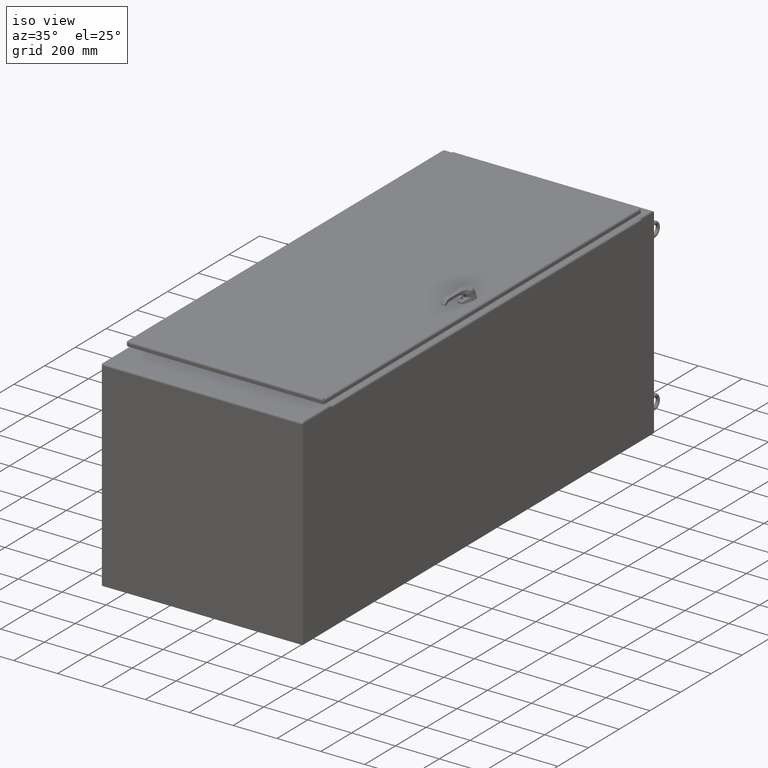
[diagram: clean part render]
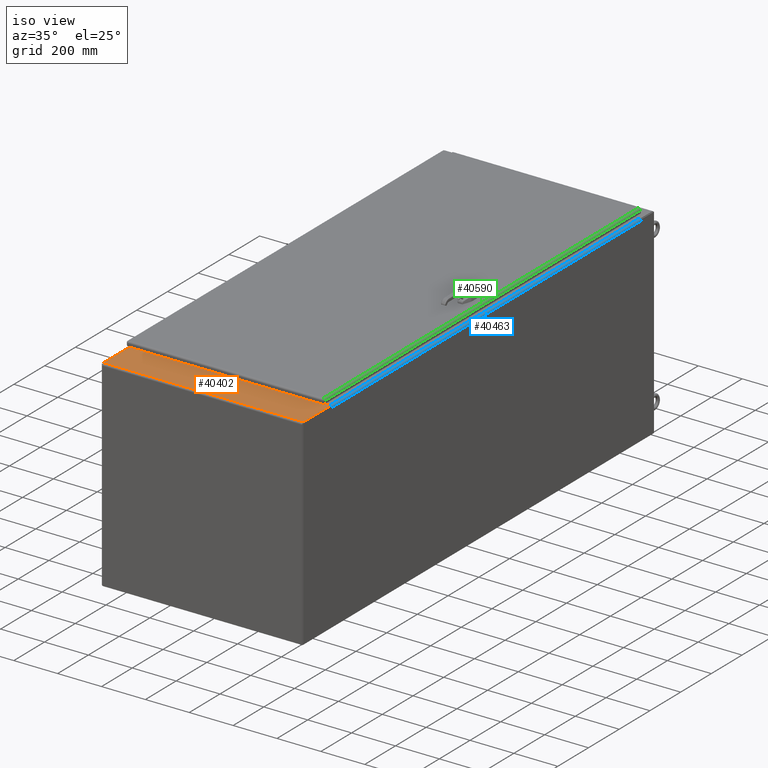
[diagram: same view with three faces highlighted in distinct colors, each labeled with its STEP entity id]
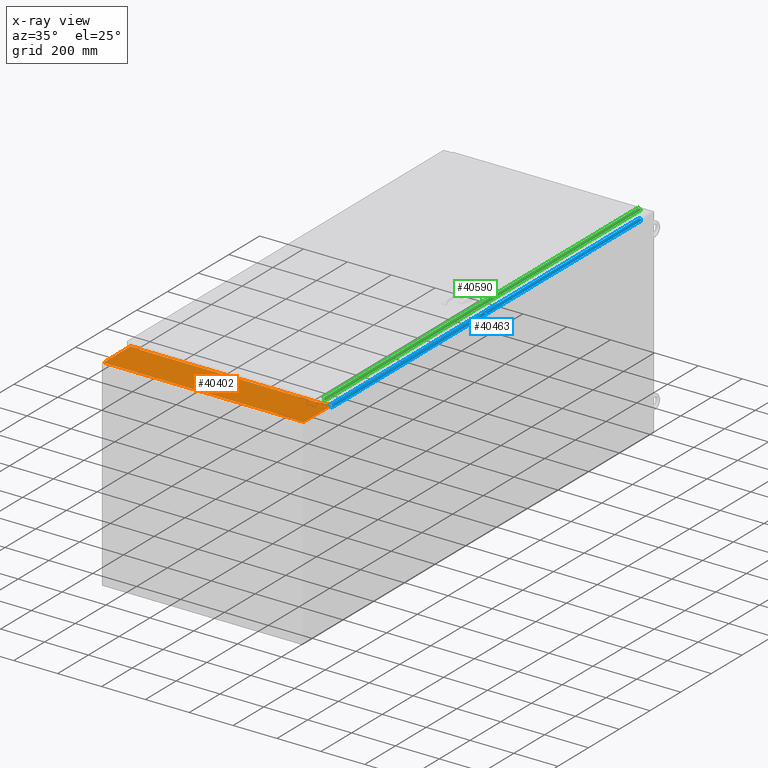
[diagram: x-ray of the same camera — body ghosted, the three highlighted faces saturated]
A machine part, iso view with three faces highlighted in distinct colors.
The next image is the same camera in x-ray (body ghosted, the three faces saturated) — at least one of them is partly hidden behind the body in this view.
Their STEP definitions:

[orange] entity #40402 — the highlighted planar face has unit normal (-0, 0, 1).
#5537=FACE_OUTER_BOUND('',#8051,.T.);
#8051=EDGE_LOOP('',(#26808,#26809,#26810,#26811,#26812,#26813,#26814,#26815,
#26816,#26817,#26818,#26819));
#10805=LINE('',#61952,#13760);
#10811=LINE('',#61965,#13766);
#10817=LINE('',#61976,#13772);
#10827=LINE('',#61996,#13782);
#10828=LINE('',#61998,#13783);
#10829=LINE('',#62000,#13784);
#10830=LINE('',#62002,#13785);
#10831=LINE('',#62004,#13786);
#10832=LINE('',#62005,#13787);
#10833=LINE('',#62007,#13788);
#10834=LINE('',#62009,#13789);
#10835=LINE('',#62010,#13790);
#13760=VECTOR('',#49099,0.393700787401575);
#13766=VECTOR('',#49107,0.393700787401575);
#13772=VECTOR('',#49117,0.393700787401575);
#13782=VECTOR('',#49131,0.393700787401575);
#13783=VECTOR('',#49132,0.393700787401575);
#13784=VECTOR('',#49133,0.393700787401575);
#13785=VECTOR('',#49134,0.393700787401575);
#13786=VECTOR('',#49135,0.393700787401575);
#13787=VECTOR('',#49136,0.393700787401575);
#13788=VECTOR('',#49137,0.393700787401575);
#13789=VECTOR('',#49138,0.393700787401575);
#13790=VECTOR('',#49139,0.291079999999999);
#16684=VERTEX_POINT('',#61950);
#16685=VERTEX_POINT('',#61951);
#16690=VERTEX_POINT('',#61962);
#16691=VERTEX_POINT('',#61964);
#16694=VERTEX_POINT('',#61974);
#16702=VERTEX_POINT('',#61995);
#16703=VERTEX_POINT('',#61997);
#16704=VERTEX_POINT('',#61999);
#16705=VERTEX_POINT('',#62001);
#16706=VERTEX_POINT('',#62003);
#16707=VERTEX_POINT('',#62006);
#16708=VERTEX_POINT('',#62008);
#20513=EDGE_CURVE('',#16684,#16685,#10805,.T.);
#20519=EDGE_CURVE('',#16691,#16690,#10811,.T.);
#20525=EDGE_CURVE('',#16685,#16694,#10817,.T.);
#20535=EDGE_CURVE('',#16694,#16702,#10827,.T.);
#20536=EDGE_CURVE('',#16702,#16703,#10828,.T.);
#20537=EDGE_CURVE('',#16703,#16704,#10829,.T.);
#20538=EDGE_CURVE('',#16704,#16705,#10830,.T.);
#20539=EDGE_CURVE('',#16705,#16706,#10831,.T.);
#20540=EDGE_CURVE('',#16706,#16691,#10832,.T.);
#20541=EDGE_CURVE('',#16707,#16690,#10833,.T.);
#20542=EDGE_CURVE('',#16707,#16708,#10834,.T.);
#20543=EDGE_CURVE('',#16684,#16708,#10835,.T.);
#26808=ORIENTED_EDGE('',*,*,#20513,.T.);
#26809=ORIENTED_EDGE('',*,*,#20525,.T.);
#26810=ORIENTED_EDGE('',*,*,#20535,.T.);
#26811=ORIENTED_EDGE('',*,*,#20536,.T.);
#26812=ORIENTED_EDGE('',*,*,#20537,.T.);
#26813=ORIENTED_EDGE('',*,*,#20538,.T.);
#26814=ORIENTED_EDGE('',*,*,#20539,.T.);
#26815=ORIENTED_EDGE('',*,*,#20540,.T.);
#26816=ORIENTED_EDGE('',*,*,#20519,.T.);
#26817=ORIENTED_EDGE('',*,*,#20541,.F.);
#26818=ORIENTED_EDGE('',*,*,#20542,.T.);
#26819=ORIENTED_EDGE('',*,*,#20543,.F.);
#38767=PLANE('',#43926);
#40402=ADVANCED_FACE('',(#5537),#38767,.T.);
#43926=AXIS2_PLACEMENT_3D('',#61994,#49129,#49130);
#49099=DIRECTION('',(-3.11515060164418E-16,1.,-5.51611741994087E-16));
#49107=DIRECTION('',(-3.11515060164418E-16,1.,-6.93866611749837E-16));
#49117=DIRECTION('',(1.70332304839072E-15,0.,1.));
#49129=DIRECTION('center_axis',(1.,3.11515060164417E-16,-1.70332304839072E-15));
#49130=DIRECTION('ref_axis',(-1.70332304839072E-15,-7.78854677593399E-17,
-1.));
#49131=DIRECTION('',(-3.11515060164417E-16,1.,0.));
#49132=DIRECTION('',(-1.70332304839072E-15,0.,-1.));
#49133=DIRECTION('',(-3.11515060164417E-16,1.,8.59090163688969E-17));
#49134=DIRECTION('',(1.70332304839072E-15,0.,1.));
#49135=DIRECTION('',(-3.11515060164417E-16,1.,0.));
#49136=DIRECTION('',(-1.70332304839072E-15,0.,-1.));
#49137=DIRECTION('',(-1.71512449944288E-15,-1.35585468084861E-31,-1.));
#49138=DIRECTION('',(3.11515060164417E-16,-1.,-4.00703837728803E-31));
#49139=DIRECTION('',(1.77635683940025E-15,-7.78854677593396E-17,1.));
#61950=CARTESIAN_POINT('',(18.0625,-17.9585,-7.21899999999993));
#61951=CARTESIAN_POINT('',(18.0625,-16.3752,-7.21899999999993));
#61952=CARTESIAN_POINT('',(18.0625,-8.1876,-7.21899999999994));
#61962=CARTESIAN_POINT('',(18.0625,17.9585,-7.21899999999998));
#61964=CARTESIAN_POINT('',(18.0625,16.1877,-7.21899999999998));
#61965=CARTESIAN_POINT('',(18.0625,8.97925,-7.21899999999997));
#61974=CARTESIAN_POINT('',(18.0625,-16.3752,-7.026175));
#61976=CARTESIAN_POINT('',(18.0625,-16.3752,-5.27903065129913));
#61994=CARTESIAN_POINT('Origin',(18.0625,-1.13784252171325E-15,-3.53188630259827));
#61995=CARTESIAN_POINT('',(18.0625,-16.375,-7.026175));
#61996=CARTESIAN_POINT('',(18.0625,-8.1875,-7.026175));
#61997=CARTESIAN_POINT('',(18.0625,-16.375,-7.026375));
#61998=CARTESIAN_POINT('',(18.0625,-16.375,-5.40144315129913));
#61999=CARTESIAN_POINT('',(18.0625,16.1875,-7.026375));
#62000=CARTESIAN_POINT('',(18.0625,8.09375,-7.026375));
#62001=CARTESIAN_POINT('',(18.0625,16.1875,-7.026175));
#62002=CARTESIAN_POINT('',(18.0625,16.1875,-5.27903065129913));
#62003=CARTESIAN_POINT('',(18.0625,16.1877,-7.026175));
#62004=CARTESIAN_POINT('',(18.0625,8.09385,-7.026175));
#62005=CARTESIAN_POINT('',(18.0625,16.1877,-5.40144315129913));
#62006=CARTESIAN_POINT('',(18.0625,17.9585,-0.249999999999994));
#62007=CARTESIAN_POINT('',(18.0625,17.9585,-0.249999999999999));
#62008=CARTESIAN_POINT('',(18.0625,-17.9585,-0.249999999999999));
#62009=CARTESIAN_POINT('',(18.0625,-5.47785546086157E-16,-0.249999999999999));
#62010=CARTESIAN_POINT('',(18.0625,-17.9585,0.664454789606916));

[blue] entity #40463 — the highlighted cylindrical surface (edge-blend (fillet) strip) has radius 8.9916 mm, axis along (0, -1, 0).
#2080=CIRCLE('',#44008,0.354000000000001);
#2081=CIRCLE('',#44010,0.354000000000001);
#4507=CYLINDRICAL_SURFACE('',#44012,0.354000000000001);
#5598=FACE_OUTER_BOUND('',#8112,.T.);
#8112=EDGE_LOOP('',(#27070,#27071,#27072,#27073));
#10913=LINE('',#62209,#13868);
#10920=LINE('',#62231,#13875);
#13868=VECTOR('',#49369,0.393700787401575);
#13875=VECTOR('',#49396,0.393700787401575);
#16751=VERTEX_POINT('',#62201);
#16753=VERTEX_POINT('',#62207);
#16757=VERTEX_POINT('',#62222);
#16758=VERTEX_POINT('',#62226);
#20641=EDGE_CURVE('',#16753,#16751,#10913,.T.);
#20648=EDGE_CURVE('',#16757,#16751,#2080,.T.);
#20651=EDGE_CURVE('',#16758,#16753,#2081,.T.);
#20652=EDGE_CURVE('',#16757,#16758,#10920,.T.);
#27070=ORIENTED_EDGE('',*,*,#20641,.F.);
#27071=ORIENTED_EDGE('',*,*,#20651,.F.);
#27072=ORIENTED_EDGE('',*,*,#20652,.F.);
#27073=ORIENTED_EDGE('',*,*,#20648,.T.);
#40463=ADVANCED_FACE('',(#5598),#4507,.T.);
#44008=AXIS2_PLACEMENT_3D('',#62223,#49384,#49385);
#44010=AXIS2_PLACEMENT_3D('',#62228,#49390,#49391);
#44012=AXIS2_PLACEMENT_3D('',#62230,#49394,#49395);
#49369=DIRECTION('',(-6.21653992852577E-17,1.,9.72511754946215E-35));
#49384=DIRECTION('center_axis',(6.22221013937788E-17,-1.,0.));
#49385=DIRECTION('ref_axis',(-2.37068842840017E-14,0.,-1.));
#49390=DIRECTION('center_axis',(6.22221013937788E-17,-1.,0.));
#49391=DIRECTION('ref_axis',(0.,0.,-1.));
#49394=DIRECTION('center_axis',(6.22221013937788E-17,-1.,0.));
#49395=DIRECTION('ref_axis',(0.,0.,-1.));
#49396=DIRECTION('',(7.04859803593627E-17,-1.,0.));
#62201=CARTESIAN_POINT('',(18.0625,41.6875,0.354000000000001));
#62207=CARTESIAN_POINT('',(18.0625,-37.6875,0.354000000000001));
#62209=CARTESIAN_POINT('',(18.0625,2.,0.354000000000001));
#62222=CARTESIAN_POINT('',(17.7085,41.6875,0.));
#62223=CARTESIAN_POINT('Origin',(17.7085,41.6875,0.354000000000001));
#62226=CARTESIAN_POINT('',(17.7085,-37.6875,0.));
#62228=CARTESIAN_POINT('Origin',(17.7085,-37.6875,0.354000000000001));
#62230=CARTESIAN_POINT('Origin',(17.7085,2.,0.354000000000001));
#62231=CARTESIAN_POINT('',(17.7085,-18.84375,0.));

[green] entity #40590 — the highlighted cylindrical surface (edge-blend (fillet) strip) has radius 8.9916 mm, axis along (-0, 1, -0).
#1217=B_SPLINE_CURVE_WITH_KNOTS('',3,(#62935,#62936,#62937,#62938,#62939,
#62940,#62941),.UNSPECIFIED.,.F.,.F.,(4,3,4),(0.610165744257167,1.15909750570729,
1.57079632679489),.UNSPECIFIED.);
#1227=B_SPLINE_CURVE_WITH_KNOTS('',3,(#63134,#63135,#63136,#63137),
 .UNSPECIFIED.,.F.,.F.,(4,4),(0.960630582537683,1.5707963267949),
 .UNSPECIFIED.);
#1231=B_SPLINE_CURVE_WITH_KNOTS('',3,(#63262,#63263,#63264,#63265,#63266,
#63267,#63268),.UNSPECIFIED.,.F.,.F.,(4,3,4),(0.,0.411698821087579,0.960630582537683),
 .UNSPECIFIED.);
#1232=B_SPLINE_CURVE_WITH_KNOTS('',3,(#63270,#63271,#63272,#63273,#63274,
#63275,#63276),.UNSPECIFIED.,.F.,.F.,(4,3,4),(0.,0.448798950512826,0.610165744257167),
 .UNSPECIFIED.);
#4537=CYLINDRICAL_SURFACE('',#44177,0.353999999999999);
#5725=FACE_OUTER_BOUND('',#8263,.T.);
#8263=EDGE_LOOP('',(#27684,#27685,#27686,#27687,#27688,#27689));
#11168=LINE('',#63261,#14123);
#11169=LINE('',#63269,#14124);
#14123=VECTOR('',#49974,0.393700787401575);
#14124=VECTOR('',#49975,0.393700787401575);
#16937=VERTEX_POINT('',#62923);
#16938=VERTEX_POINT('',#62934);
#16945=VERTEX_POINT('',#63120);
#16946=VERTEX_POINT('',#63133);
#16948=VERTEX_POINT('',#63158);
#16951=VERTEX_POINT('',#63260);
#20932=EDGE_CURVE('',#16937,#16938,#1217,.T.);
#20950=EDGE_CURVE('',#16945,#16946,#1227,.T.);
#20967=EDGE_CURVE('',#16946,#16951,#11168,.T.);
#20968=EDGE_CURVE('',#16948,#16945,#1231,.T.);
#20969=EDGE_CURVE('',#16938,#16948,#11169,.T.);
#20970=EDGE_CURVE('',#16951,#16937,#1232,.T.);
#27684=ORIENTED_EDGE('',*,*,#20967,.F.);
#27685=ORIENTED_EDGE('',*,*,#20950,.F.);
#27686=ORIENTED_EDGE('',*,*,#20968,.F.);
#27687=ORIENTED_EDGE('',*,*,#20969,.F.);
#27688=ORIENTED_EDGE('',*,*,#20932,.F.);
#27689=ORIENTED_EDGE('',*,*,#20970,.F.);
#40590=ADVANCED_FACE('',(#5725),#4537,.T.);
#44177=AXIS2_PLACEMENT_3D('',#63259,#49972,#49973);
#49972=DIRECTION('center_axis',(-1.03130409051141E-16,1.,0.));
#49973=DIRECTION('ref_axis',(0.,0.,1.));
#49974=DIRECTION('',(1.58670998541504E-16,-1.,-9.52590257484208E-32));
#49975=DIRECTION('',(-6.93570442811114E-17,1.,0.));
#62923=CARTESIAN_POINT('',(17.654871782212,-40.4796322979832,-0.0471568303191909));
#62934=CARTESIAN_POINT('',(17.36475,-40.3335,0.104));
#62935=CARTESIAN_POINT('Ctrl Pts',(17.654871782212,-40.4796322979832,-0.0471568303191946));
#62936=CARTESIAN_POINT('Ctrl Pts',(17.6177560960683,-40.4517975745578,0.0059288566623601));
#62937=CARTESIAN_POINT('Ctrl Pts',(17.5657338716341,-40.4239628511324,0.0484677442616104));
#62938=CARTESIAN_POINT('Ctrl Pts',(17.506414390168,-40.3961281277071,0.0744139907964585));
#62939=CARTESIAN_POINT('Ctrl Pts',(17.4619247790684,-40.375252085138,0.0938736756975946));
#62940=CARTESIAN_POINT('Ctrl Pts',(17.4133304608883,-40.354376042569,0.104000000000004));
#62941=CARTESIAN_POINT('Ctrl Pts',(17.36475,-40.3335,0.104000000000004));
#63120=CARTESIAN_POINT('',(17.654871782212,40.4796322979832,-0.0471568303191809));
#63133=CARTESIAN_POINT('',(17.71875,40.572451456544,-0.249999999999996));
#63134=CARTESIAN_POINT('Ctrl Pts',(17.6547544565291,40.4796322979832,-0.0471970022499609));
#63135=CARTESIAN_POINT('Ctrl Pts',(17.6958493744086,40.5105720175034,-0.10624762514981));
#63136=CARTESIAN_POINT('Ctrl Pts',(17.71875,40.5415117370237,-0.178000442177646));
#63137=CARTESIAN_POINT('Ctrl Pts',(17.71875,40.572451456544,-0.249999999999997));
#63158=CARTESIAN_POINT('',(17.36475,40.3335,0.104));
#63259=CARTESIAN_POINT('Origin',(17.36475,0.,-0.249999999999999));
#63260=CARTESIAN_POINT('',(17.71875,-40.5724514565439,-0.249999999999996));
#63261=CARTESIAN_POINT('',(17.71875,4.93597661621485E-16,-0.249999999999999));
#63262=CARTESIAN_POINT('Ctrl Pts',(17.36475,40.3335,0.104));
#63263=CARTESIAN_POINT('Ctrl Pts',(17.4133304608883,40.354376042569,0.104));
#63264=CARTESIAN_POINT('Ctrl Pts',(17.4619247790684,40.375252085138,0.0938736756975918));
#63265=CARTESIAN_POINT('Ctrl Pts',(17.506414390168,40.3961281277071,0.0744139907964577));
#63266=CARTESIAN_POINT('Ctrl Pts',(17.5657338716341,40.4239628511324,0.0484677442616123));
#63267=CARTESIAN_POINT('Ctrl Pts',(17.6177560960683,40.4517975745578,0.00592885666236575));
#63268=CARTESIAN_POINT('Ctrl Pts',(17.654871782212,40.4796322979832,-0.0471568303191845));
#63269=CARTESIAN_POINT('',(17.36475,-20.16675,0.104));
#63270=CARTESIAN_POINT('Ctrl Pts',(17.71875,-40.5724514565439,-0.249999999999995));
#63271=CARTESIAN_POINT('Ctrl Pts',(17.71875,-40.5496941749683,-0.197041723839481));
#63272=CARTESIAN_POINT('Ctrl Pts',(17.7066320450176,-40.5269368933927,-0.144187732702687));
#63273=CARTESIAN_POINT('Ctrl Pts',(17.6836542713581,-40.5041796118171,-0.0964931733200452));
#63274=CARTESIAN_POINT('Ctrl Pts',(17.675392554929,-40.4959971738725,-0.0793444742916011));
#63275=CARTESIAN_POINT('Ctrl Pts',(17.6657269027,-40.4878147359278,-0.0628627763579391));
#63276=CARTESIAN_POINT('Ctrl Pts',(17.6548103174211,-40.4796322979832,-0.0472535724700366));